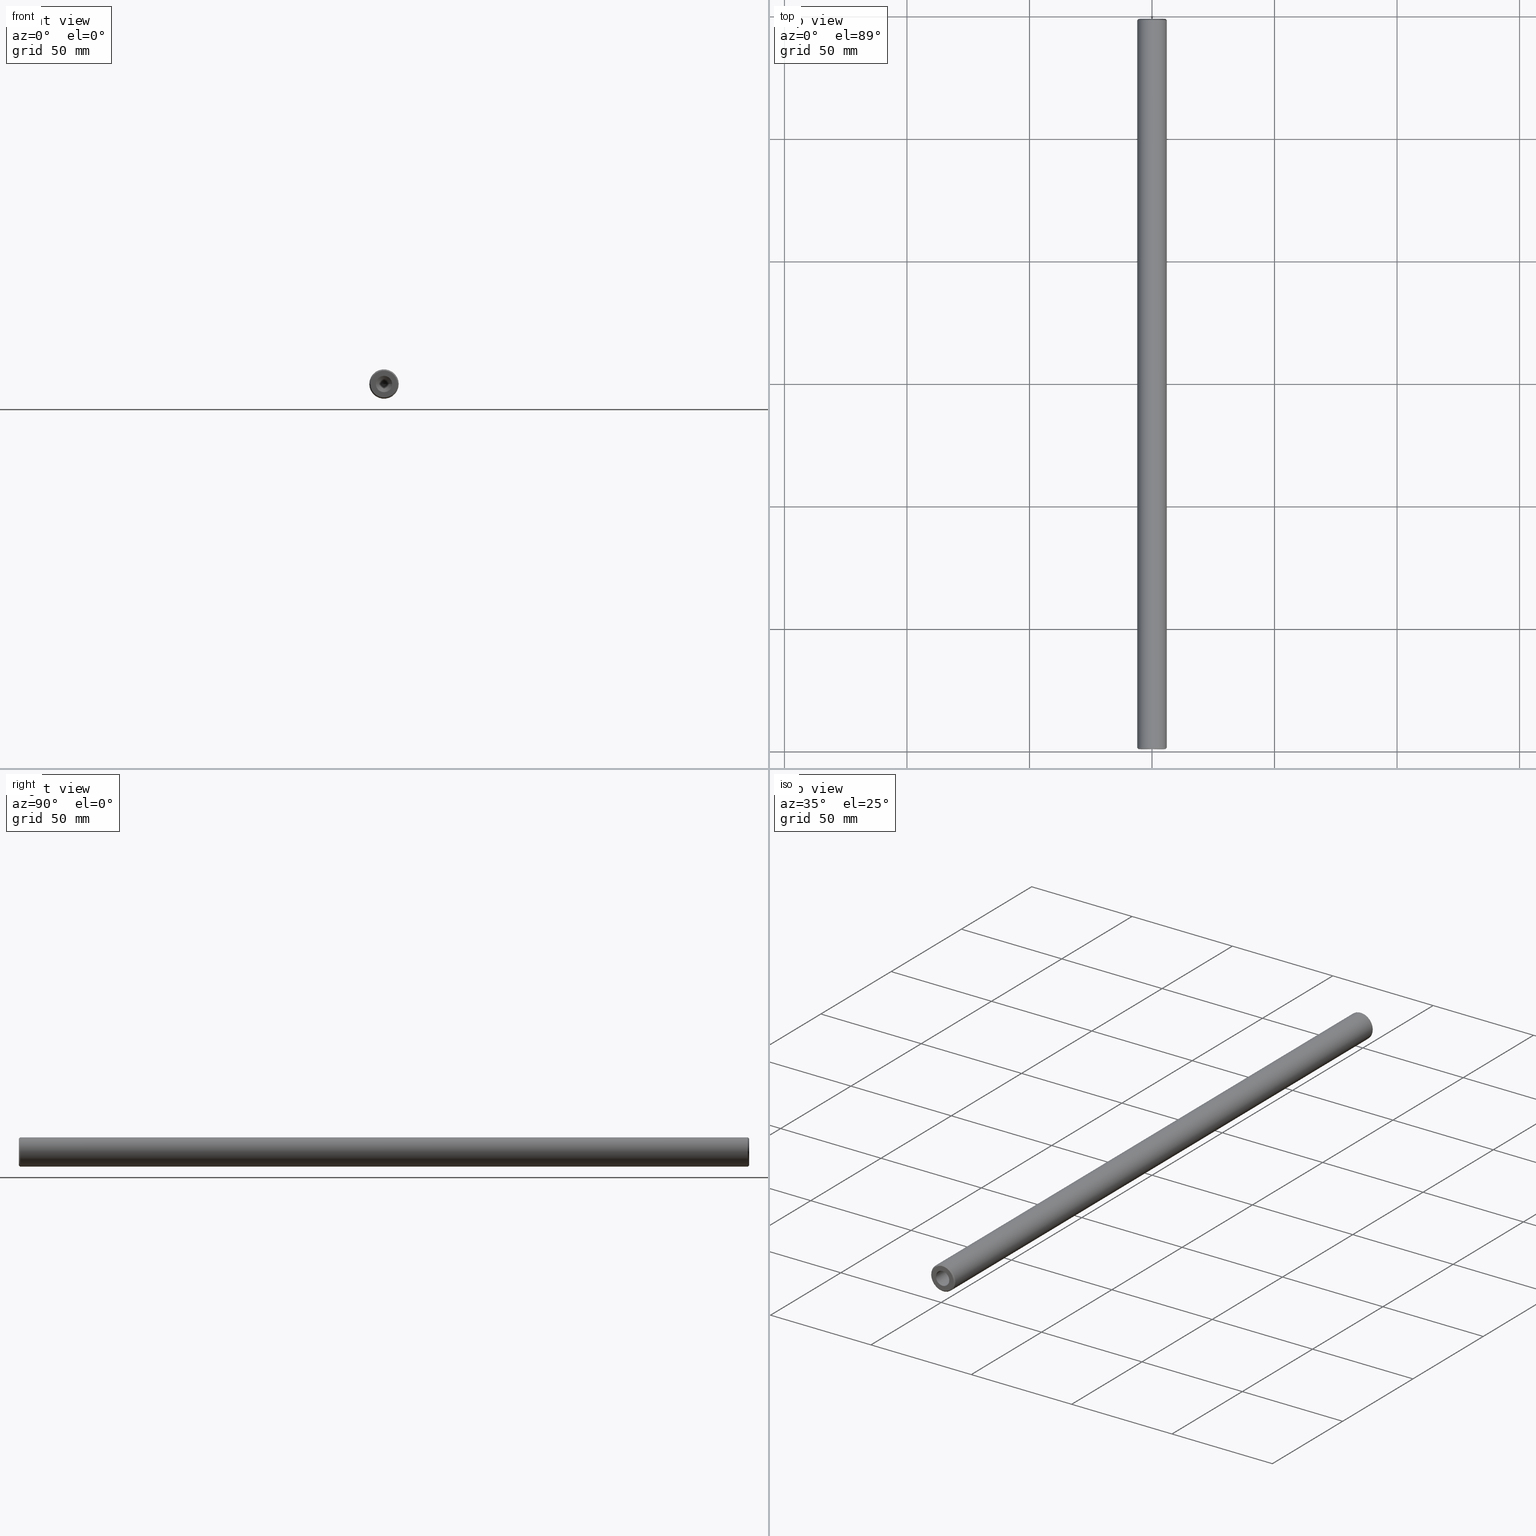
[diagram: canonical four-view strip — front | top / right | iso, engineering-drawing reading convention]
A machine part, canonical four-view strip (front | top / right | iso — engineering-drawing reading convention). The complete STEP part file that produces these views, byte-faithful:
ISO-10303-21;
HEADER;
/* Generated by software containing ST-Developer
 * from STEP Tools, Inc. (www.steptools.com) 
 */

FILE_DESCRIPTION(
/* description */ ('PERNO X GUIDE D=12 L=298 2FFM=8 ZN '),
/* implementation_level */ '2;1');

FILE_NAME(
/* name */ 
'Q:\\Catalogo\\2_Accessori Dierre\\Per Download Web e catalogo cartace
o\\CATALOGO ACCESSORI PER RIPARI\\PAGINA 71\\DPEXX0000100.stp',
/* time_stamp */ '2018-11-08T15:56:07+01:00',
/* author */ ('fzagni'),
/* organization */ (''),
/* preprocessor_version */ 'ST-DEVELOPER v16.1',
/* originating_system */ 'Autodesk Inventor 2016',
/* authorisation */ '');

FILE_SCHEMA (('AUTOMOTIVE_DESIGN { 1 0 10303 214 3 1 1 }'));
ENDSEC;

DATA;
#10=MECHANICAL_DESIGN_GEOMETRIC_PRESENTATION_REPRESENTATION('',(#13),#189);
#11=SHAPE_REPRESENTATION_RELATIONSHIP('SRR','None',#198,#12);
#12=ADVANCED_BREP_SHAPE_REPRESENTATION('',(#14),#188);
#13=STYLED_ITEM('',(#207),#14);
#14=MANIFOLD_SOLID_BREP('Solido1',#105);
#15=PLANE('',#112);
#16=PLANE('',#116);
#17=CYLINDRICAL_SURFACE('',#110,6.);
#18=CYLINDRICAL_SURFACE('',#120,3.3235);
#19=CYLINDRICAL_SURFACE('',#123,3.3235);
#20=FACE_BOUND('',#37,.T.);
#21=FACE_BOUND('',#39,.T.);
#22=FACE_BOUND('',#41,.T.);
#23=FACE_BOUND('',#43,.T.);
#24=FACE_BOUND('',#45,.T.);
#25=FACE_BOUND('',#48,.T.);
#26=FACE_BOUND('',#51,.T.);
#27=FACE_OUTER_BOUND('',#36,.T.);
#28=FACE_OUTER_BOUND('',#38,.T.);
#29=FACE_OUTER_BOUND('',#40,.T.);
#30=FACE_OUTER_BOUND('',#42,.T.);
#31=FACE_OUTER_BOUND('',#44,.T.);
#32=FACE_OUTER_BOUND('',#46,.T.);
#33=FACE_OUTER_BOUND('',#47,.T.);
#34=FACE_OUTER_BOUND('',#49,.T.);
#35=FACE_OUTER_BOUND('',#50,.T.);
#36=EDGE_LOOP('',(#76));
#37=EDGE_LOOP('',(#77));
#38=EDGE_LOOP('',(#78));
#39=EDGE_LOOP('',(#79));
#40=EDGE_LOOP('',(#80));
#41=EDGE_LOOP('',(#81));
#42=EDGE_LOOP('',(#82));
#43=EDGE_LOOP('',(#83));
#44=EDGE_LOOP('',(#84));
#45=EDGE_LOOP('',(#85));
#46=EDGE_LOOP('',(#86));
#47=EDGE_LOOP('',(#87));
#48=EDGE_LOOP('',(#88));
#49=EDGE_LOOP('',(#89));
#50=EDGE_LOOP('',(#90));
#51=EDGE_LOOP('',(#91));
#52=CIRCLE('',#108,6.);
#53=CIRCLE('',#109,5.5);
#54=CIRCLE('',#111,6.);
#55=CIRCLE('',#113,3.3235);
#56=CIRCLE('',#115,5.5);
#57=CIRCLE('',#117,3.3235);
#58=CIRCLE('',#119,3.3235);
#59=CIRCLE('',#122,3.3235);
#60=VERTEX_POINT('',#162);
#61=VERTEX_POINT('',#164);
#62=VERTEX_POINT('',#167);
#63=VERTEX_POINT('',#170);
#64=VERTEX_POINT('',#173);
#65=VERTEX_POINT('',#176);
#66=VERTEX_POINT('',#179);
#67=VERTEX_POINT('',#183);
#68=EDGE_CURVE('',#60,#60,#52,.T.);
#69=EDGE_CURVE('',#61,#61,#53,.T.);
#70=EDGE_CURVE('',#62,#62,#54,.T.);
#71=EDGE_CURVE('',#63,#63,#55,.T.);
#72=EDGE_CURVE('',#64,#64,#56,.T.);
#73=EDGE_CURVE('',#65,#65,#57,.T.);
#74=EDGE_CURVE('',#66,#66,#58,.T.);
#75=EDGE_CURVE('',#67,#67,#59,.T.);
#76=ORIENTED_EDGE('',*,*,#68,.T.);
#77=ORIENTED_EDGE('',*,*,#69,.T.);
#78=ORIENTED_EDGE('',*,*,#70,.F.);
#79=ORIENTED_EDGE('',*,*,#68,.F.);
#80=ORIENTED_EDGE('',*,*,#69,.F.);
#81=ORIENTED_EDGE('',*,*,#71,.T.);
#82=ORIENTED_EDGE('',*,*,#70,.T.);
#83=ORIENTED_EDGE('',*,*,#72,.T.);
#84=ORIENTED_EDGE('',*,*,#72,.F.);
#85=ORIENTED_EDGE('',*,*,#73,.T.);
#86=ORIENTED_EDGE('',*,*,#74,.F.);
#87=ORIENTED_EDGE('',*,*,#71,.F.);
#88=ORIENTED_EDGE('',*,*,#74,.T.);
#89=ORIENTED_EDGE('',*,*,#75,.T.);
#90=ORIENTED_EDGE('',*,*,#73,.F.);
#91=ORIENTED_EDGE('',*,*,#75,.F.);
#92=CONICAL_SURFACE('',#107,5.75,44.9999999999996);
#93=CONICAL_SURFACE('',#114,5.75,44.9999999999996);
#94=CONICAL_SURFACE('',#118,1.66175,59.);
#95=CONICAL_SURFACE('',#121,1.66175,59.);
#96=ADVANCED_FACE('',(#27,#20),#92,.T.);
#97=ADVANCED_FACE('',(#28,#21),#17,.T.);
#98=ADVANCED_FACE('',(#29,#22),#15,.F.);
#99=ADVANCED_FACE('',(#30,#23),#93,.T.);
#100=ADVANCED_FACE('',(#31,#24),#16,.T.);
#101=ADVANCED_FACE('',(#32),#94,.F.);
#102=ADVANCED_FACE('',(#33,#25),#18,.F.);
#103=ADVANCED_FACE('',(#34),#95,.F.);
#104=ADVANCED_FACE('',(#35,#26),#19,.F.);
#105=CLOSED_SHELL('',(#96,#97,#98,#99,#100,#101,#102,#103,#104));
#106=AXIS2_PLACEMENT_3D('placement',#160,#124,#125);
#107=AXIS2_PLACEMENT_3D('',#161,#126,#127);
#108=AXIS2_PLACEMENT_3D('',#163,#128,#129);
#109=AXIS2_PLACEMENT_3D('',#165,#130,#131);
#110=AXIS2_PLACEMENT_3D('',#166,#132,#133);
#111=AXIS2_PLACEMENT_3D('',#168,#134,#135);
#112=AXIS2_PLACEMENT_3D('',#169,#136,#137);
#113=AXIS2_PLACEMENT_3D('',#171,#138,#139);
#114=AXIS2_PLACEMENT_3D('',#172,#140,#141);
#115=AXIS2_PLACEMENT_3D('',#174,#142,#143);
#116=AXIS2_PLACEMENT_3D('',#175,#144,#145);
#117=AXIS2_PLACEMENT_3D('',#177,#146,#147);
#118=AXIS2_PLACEMENT_3D('',#178,#148,#149);
#119=AXIS2_PLACEMENT_3D('',#180,#150,#151);
#120=AXIS2_PLACEMENT_3D('',#181,#152,#153);
#121=AXIS2_PLACEMENT_3D('',#182,#154,#155);
#122=AXIS2_PLACEMENT_3D('',#184,#156,#157);
#123=AXIS2_PLACEMENT_3D('',#185,#158,#159);
#124=DIRECTION('axis',(0.,0.,1.));
#125=DIRECTION('refdir',(1.,0.,0.));
#126=DIRECTION('center_axis',(0.,1.,0.));
#127=DIRECTION('ref_axis',(1.,0.,0.));
#128=DIRECTION('center_axis',(0.,-1.,0.));
#129=DIRECTION('ref_axis',(1.,0.,0.));
#130=DIRECTION('center_axis',(0.,1.,0.));
#131=DIRECTION('ref_axis',(1.,0.,0.));
#132=DIRECTION('center_axis',(0.,1.,0.));
#133=DIRECTION('ref_axis',(1.,0.,0.));
#134=DIRECTION('center_axis',(0.,1.,0.));
#135=DIRECTION('ref_axis',(1.,0.,0.));
#136=DIRECTION('center_axis',(0.,1.,0.));
#137=DIRECTION('ref_axis',(0.,0.,1.));
#138=DIRECTION('center_axis',(0.,1.,0.));
#139=DIRECTION('ref_axis',(1.,0.,0.));
#140=DIRECTION('center_axis',(0.,-1.,0.));
#141=DIRECTION('ref_axis',(1.,0.,0.));
#142=DIRECTION('center_axis',(0.,-1.,0.));
#143=DIRECTION('ref_axis',(1.,0.,0.));
#144=DIRECTION('center_axis',(0.,1.,0.));
#145=DIRECTION('ref_axis',(0.,0.,1.));
#146=DIRECTION('center_axis',(0.,-1.,0.));
#147=DIRECTION('ref_axis',(1.,0.,0.));
#148=DIRECTION('center_axis',(0.,-1.,0.));
#149=DIRECTION('ref_axis',(1.,0.,0.));
#150=DIRECTION('center_axis',(0.,1.,0.));
#151=DIRECTION('ref_axis',(1.,0.,0.));
#152=DIRECTION('center_axis',(0.,1.,0.));
#153=DIRECTION('ref_axis',(1.,0.,0.));
#154=DIRECTION('center_axis',(0.,1.,0.));
#155=DIRECTION('ref_axis',(1.,0.,0.));
#156=DIRECTION('center_axis',(0.,1.,0.));
#157=DIRECTION('ref_axis',(1.,0.,0.));
#158=DIRECTION('center_axis',(0.,1.,0.));
#159=DIRECTION('ref_axis',(1.,0.,0.));
#160=CARTESIAN_POINT('',(0.,0.,0.));
#161=CARTESIAN_POINT('Origin',(0.,-148.75,0.));
#162=CARTESIAN_POINT('',(-6.,-148.5,-7.34788079488412E-16));
#163=CARTESIAN_POINT('Origin',(0.,-148.5,0.));
#164=CARTESIAN_POINT('',(-5.5,-149.,6.73555739531044E-16));
#165=CARTESIAN_POINT('Origin',(0.,-149.,0.));
#166=CARTESIAN_POINT('Origin',(0.,0.,0.));
#167=CARTESIAN_POINT('',(-6.,148.5,7.34788079488412E-16));
#168=CARTESIAN_POINT('Origin',(0.,148.5,0.));
#169=CARTESIAN_POINT('Origin',(3.69627624575467E-16,-149.,-1.54197642309049E-16));
#170=CARTESIAN_POINT('',(3.3235,-149.,0.));
#171=CARTESIAN_POINT('Origin',(0.,-149.,0.));
#172=CARTESIAN_POINT('Origin',(0.,148.75,0.));
#173=CARTESIAN_POINT('',(-5.5,149.,-6.73555739531044E-16));
#174=CARTESIAN_POINT('Origin',(0.,149.,0.));
#175=CARTESIAN_POINT('Origin',(3.69627624575467E-16,149.,-1.54197642309049E-16));
#176=CARTESIAN_POINT('',(3.3235,149.,0.));
#177=CARTESIAN_POINT('Origin',(0.,149.,0.));
#178=CARTESIAN_POINT('Origin',(0.,-125.001519866331,0.));
#179=CARTESIAN_POINT('',(3.3235,-126.,0.));
#180=CARTESIAN_POINT('Origin',(0.,-126.,0.));
#181=CARTESIAN_POINT('Origin',(0.,-137.5,0.));
#182=CARTESIAN_POINT('Origin',(0.,125.001519866331,0.));
#183=CARTESIAN_POINT('',(3.3235,126.,0.));
#184=CARTESIAN_POINT('Origin',(0.,126.,0.));
#185=CARTESIAN_POINT('Origin',(0.,137.5,0.));
#186=UNCERTAINTY_MEASURE_WITH_UNIT(LENGTH_MEASURE(0.01),#190,
'DISTANCE_ACCURACY_VALUE',
'Maximum model space distance between geometric entities at asserted c
onnectivities');
#187=UNCERTAINTY_MEASURE_WITH_UNIT(LENGTH_MEASURE(1.E-6),#190,
'DISTANCE_ACCURACY_VALUE',
'Maximum model space distance between geometric entities at asserted c
onnectivities');
#188=(
GEOMETRIC_REPRESENTATION_CONTEXT(3)
GLOBAL_UNCERTAINTY_ASSIGNED_CONTEXT((#186))
GLOBAL_UNIT_ASSIGNED_CONTEXT((#190,#193,#191))
REPRESENTATION_CONTEXT('','3D')
);
#189=(
GEOMETRIC_REPRESENTATION_CONTEXT(3)
GLOBAL_UNCERTAINTY_ASSIGNED_CONTEXT((#187))
GLOBAL_UNIT_ASSIGNED_CONTEXT((#190,#193,#191))
REPRESENTATION_CONTEXT('','3D')
);
#190=(
LENGTH_UNIT()
NAMED_UNIT(*)
SI_UNIT(.MILLI.,.METRE.)
);
#191=(
NAMED_UNIT(*)
SI_UNIT($,.STERADIAN.)
SOLID_ANGLE_UNIT()
);
#192=DIMENSIONAL_EXPONENTS(0.,0.,0.,0.,0.,0.,0.);
#193=(
CONVERSION_BASED_UNIT('degree',#195)
NAMED_UNIT(#192)
PLANE_ANGLE_UNIT()
);
#194=(
NAMED_UNIT(*)
PLANE_ANGLE_UNIT()
SI_UNIT($,.RADIAN.)
);
#195=PLANE_ANGLE_MEASURE_WITH_UNIT(PLANE_ANGLE_MEASURE(0.01745329252),#194);
#196=SHAPE_DEFINITION_REPRESENTATION(#197,#198);
#197=PRODUCT_DEFINITION_SHAPE('',$,#200);
#198=SHAPE_REPRESENTATION('',(#106),#188);
#199=PRODUCT_DEFINITION_CONTEXT('part definition',#204,'design');
#200=PRODUCT_DEFINITION('70PE00035-A','70PE00035-A',#201,#199);
#201=PRODUCT_DEFINITION_FORMATION('','A',#206);
#202=PRODUCT_RELATED_PRODUCT_CATEGORY('70PE00035-A','70PE00035-A',(#206));
#203=APPLICATION_PROTOCOL_DEFINITION('international standard',
'automotive_design',2009,#204);
#204=APPLICATION_CONTEXT(
'Core Data for Automotive Mechanical Design Process');
#205=PRODUCT_CONTEXT('part definition',#204,'mechanical');
#206=PRODUCT('70PE00035-A','70PE00035-A',$,(#205));
#207=PRESENTATION_STYLE_ASSIGNMENT((#208));
#208=SURFACE_STYLE_USAGE(.BOTH.,#209);
#209=SURFACE_SIDE_STYLE('',(#210));
#210=SURFACE_STYLE_FILL_AREA(#211);
#211=FILL_AREA_STYLE('',(#212));
#212=FILL_AREA_STYLE_COLOUR('',#213);
#213=COLOUR_RGB('',0.83921568627451,0.886274509803922,0.854901960784314);
ENDSEC;
END-ISO-10303-21;
